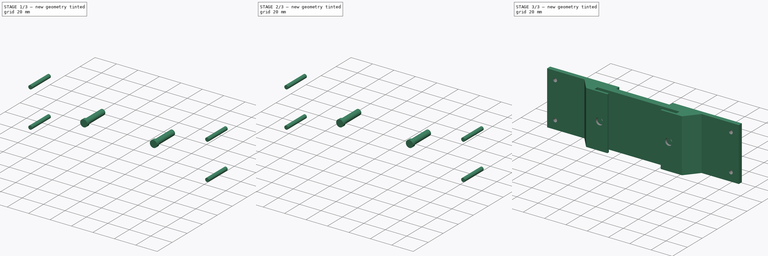
[diagram: build sequence overview — one tinted view per stage of 3, left to right]
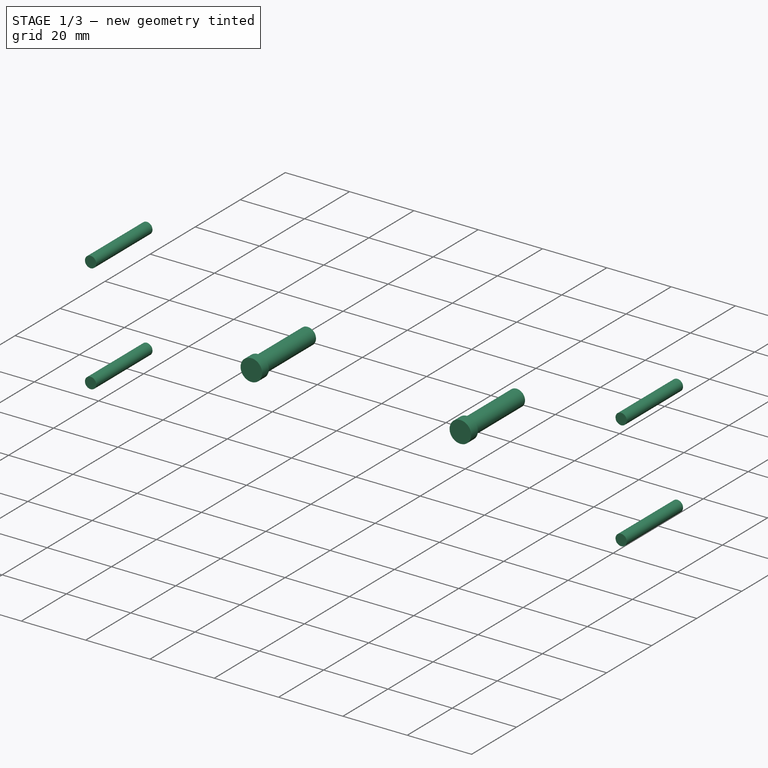
[diagram: stage 1 of 3 — iso view after this stage's code; geometry added in this stage tinted green]
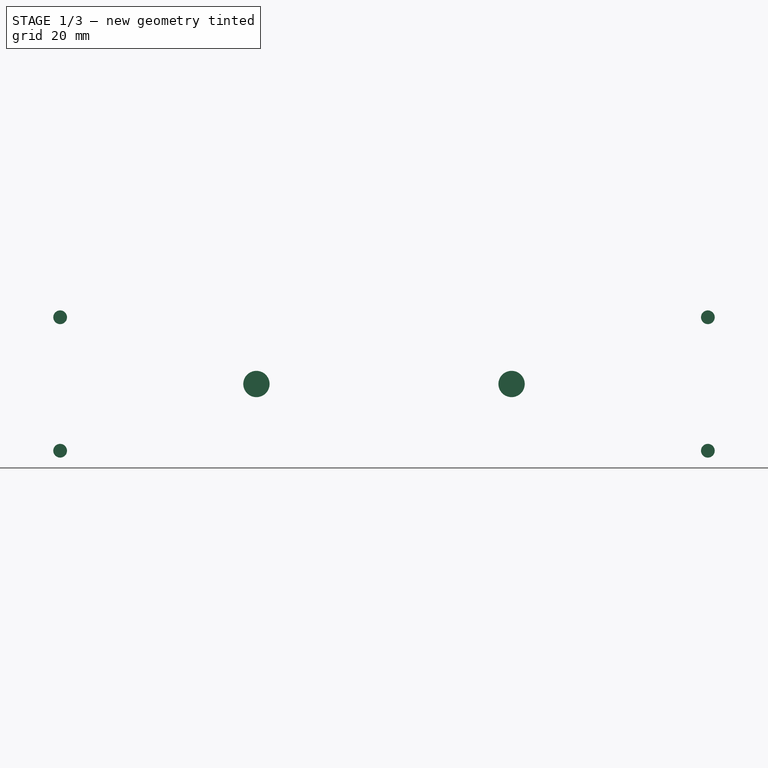
[diagram: stage 1 of 3 — front view after this stage's code; geometry added in this stage tinted green]
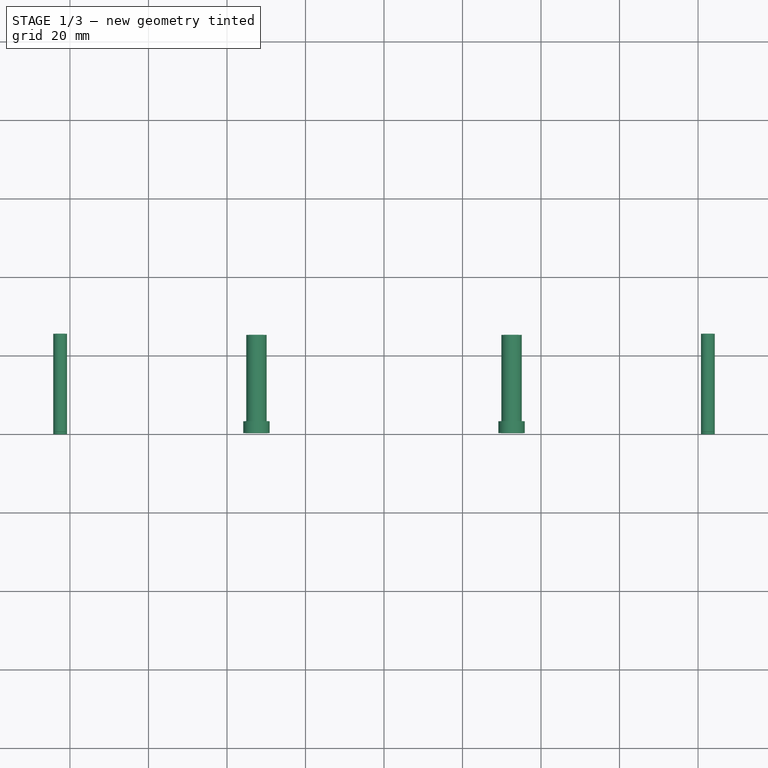
[diagram: stage 1 of 3 — top view after this stage's code; geometry added in this stage tinted green]
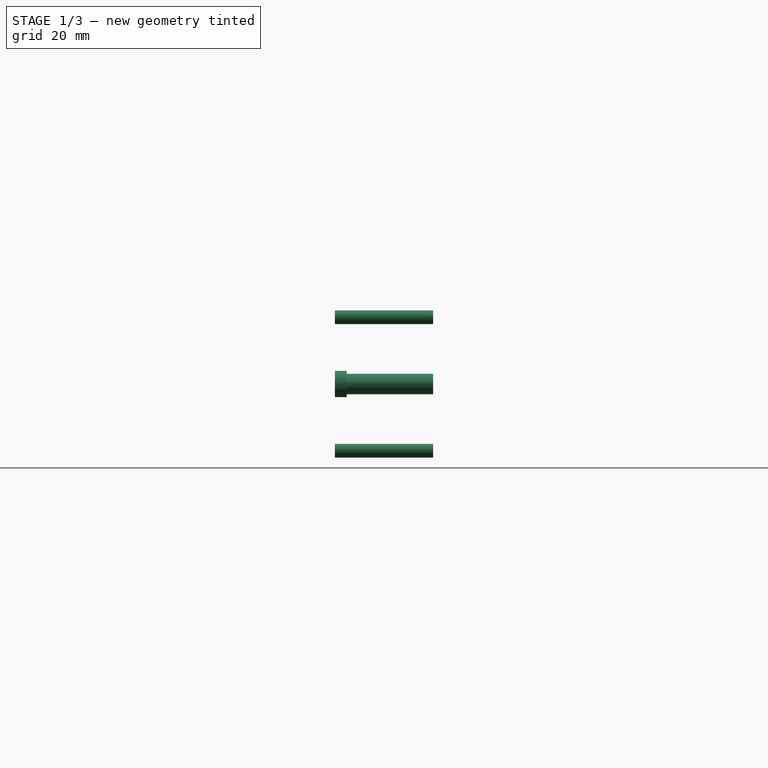
[diagram: stage 1 of 3 — right view after this stage's code; geometry added in this stage tinted green]
FCSTD DOCUMENT  (FreeCAD 0.16R6698 (Git))
Label: stand-mount
License: All rights reserved
LicenseURL: http://en.wikipedia.org/wiki/All_rights_reserved
objects: Sketcher::SketchObject×3, Part::Extrusion×3, Part::MultiFuse×1, Part::Cut×1
note: 8 computed .brp shape members not serialized (recipe doc carries the construction recipe); baked Part::Feature solids carry a one-line shape summary decoded from their .brp

FEATURE [Sketcher::SketchObject] Sketch001
  Placement = pos=(0,0,25) rot=(1,0,0;1.5708rad)
  sketch-geometry (10):
    g0: Circle CenterX=-82.5 CenterY=-17 CenterZ=0 NormalX=0 NormalY=0 NormalZ=1 Radius=1.75
    g1: Circle CenterX=82.5 CenterY=17 CenterZ=0 NormalX=0 NormalY=0 NormalZ=1 Radius=1.75
    g2: Circle CenterX=82.5 CenterY=-17 CenterZ=0 NormalX=0 NormalY=0 NormalZ=1 Radius=1.75
    g3: Circle CenterX=-32.5 CenterY=0 CenterZ=0 NormalX=0 NormalY=0 NormalZ=1 Radius=2.6
    g4: Circle CenterX=32.5 CenterY=0 CenterZ=0 NormalX=0 NormalY=0 NormalZ=1 Radius=2.6
    g5: Circle CenterX=-82.5 CenterY=17 CenterZ=0 NormalX=0 NormalY=0 NormalZ=1 Radius=1.75
    g6: LineSegment [constr] StartX=-82.5 StartY=17 StartZ=0 EndX=82.5 EndY=17 EndZ=0
    g7: LineSegment [constr] StartX=82.5 StartY=17 StartZ=0 EndX=82.5 EndY=-17 EndZ=0
    g8: LineSegment [constr] StartX=82.5 StartY=-17 StartZ=0 EndX=-82.5 EndY=-17 EndZ=0
    g9: LineSegment [constr] StartX=-82.5 StartY=-17 StartZ=0 EndX=-82.5 EndY=17 EndZ=0
  constraints (26):
    c: DistanceX(g0,g2) = 165
    c: PointOnObject(g3,g-1)
    c: PointOnObject(g4,g-1)
    c: Symmetric(g3,g4,g-2)
    c: DistanceX(g3,g4) = 65
    c: Radius(g3) = 2.6
    c: Equal(g3,g4)
    c: Radius(g0) = 1.75
    c: Equal(g0,g2)
    c: Equal(g0,g1)
    c: Equal(g5,g0)
    c: Coincident(g6,g7)
    c: Coincident(g7,g8)
    c: Coincident(g8,g9)
    c: Coincident(g9,g6)
    c: Horizontal(g6)
    c: Horizontal(g8)
    c: Vertical(g7)
    c: Vertical(g9)
    c: Coincident(g6,g5)
    c: Coincident(g8,g0)
    c: Coincident(g1,g6)
    c: Coincident(g2,g7)
    c: Symmetric(g1,g2,g-1)
    c: Symmetric(g5,g1,g-2)
    c: DistanceY(g7,g7) = 34
FEATURE [Sketcher::SketchObject] Sketch002
  Placement = pos=(0,0,25) rot=(1,0,0;1.5708rad)
  sketch-geometry (2):
    g0: Circle CenterX=-32.5 CenterY=0 CenterZ=0 NormalX=0 NormalY=0 NormalZ=1 Radius=3.35
    g1: Circle CenterX=32.5 CenterY=0 CenterZ=0 NormalX=0 NormalY=0 NormalZ=1 Radius=3.35
  constraints (6):
    c: PointOnObject(g0,g-1)
    c: PointOnObject(g1,g-1)
    c: Symmetric(g0,g1,g-2)
    c: DistanceX(g0,g1) = 65
    c: Radius(g0) = 3.35
    c: Equal(g0,g1)
FEATURE [Part::Extrusion] Extrude002
  Base = -> Sketch002
  Dir = (0,3,0)
  Solid = true
FEATURE [Part::Extrusion] Extrude003
  Base = -> Sketch001
  Dir = (0,25,0)
  Solid = true
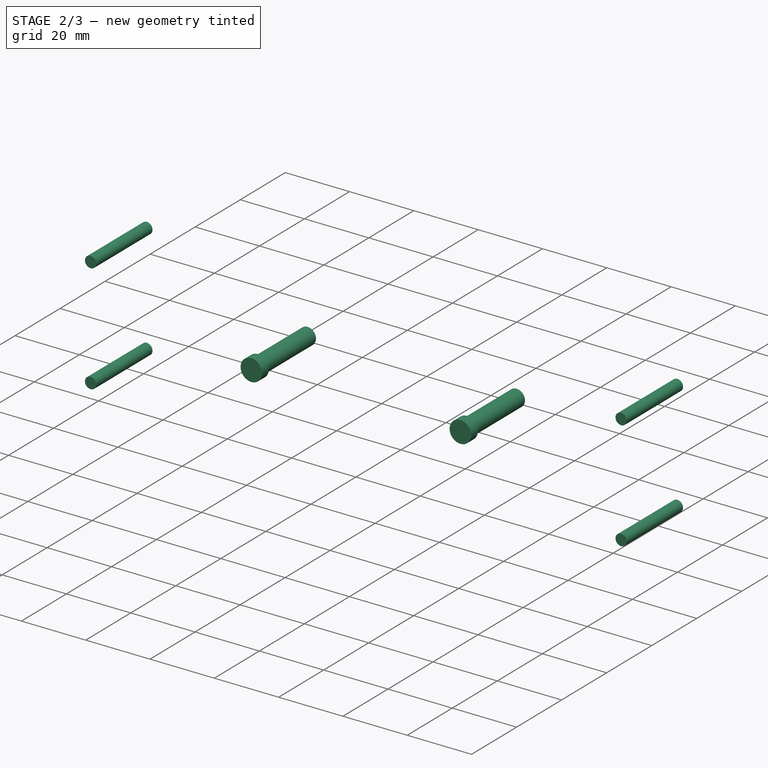
[diagram: stage 2 of 3 — iso view after this stage's code; geometry added in this stage tinted green]
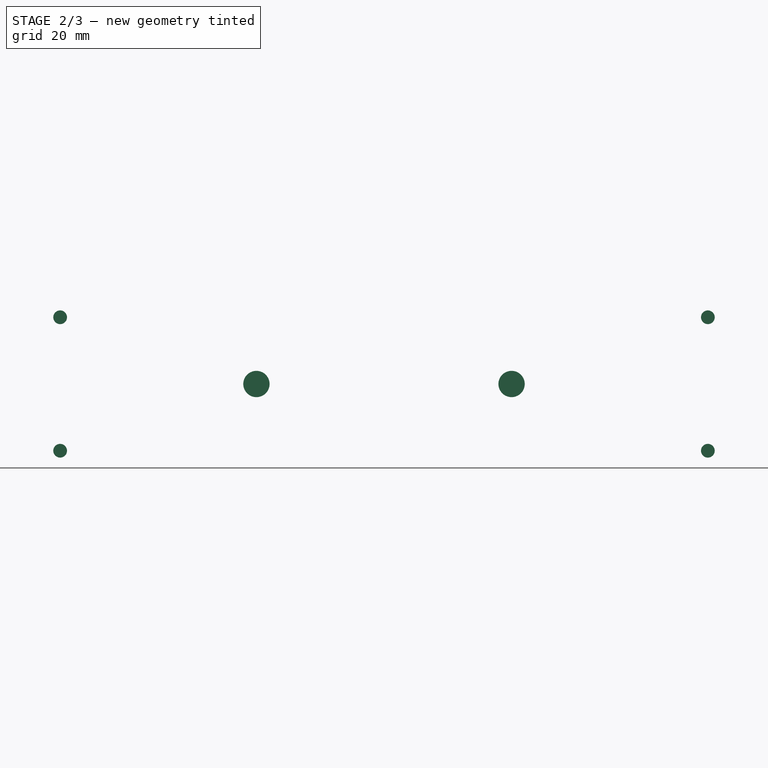
[diagram: stage 2 of 3 — front view after this stage's code; geometry added in this stage tinted green]
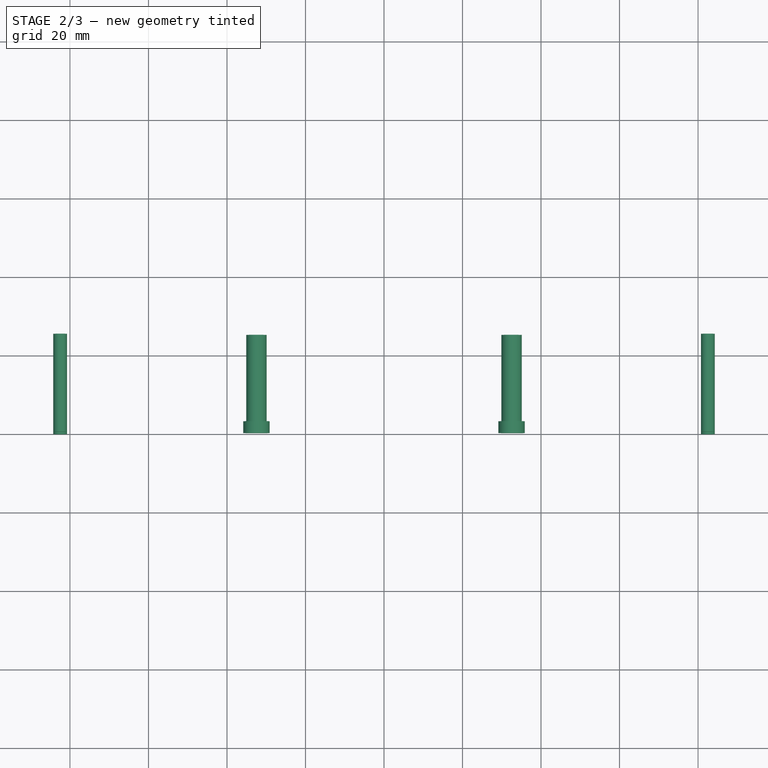
[diagram: stage 2 of 3 — top view after this stage's code; geometry added in this stage tinted green]
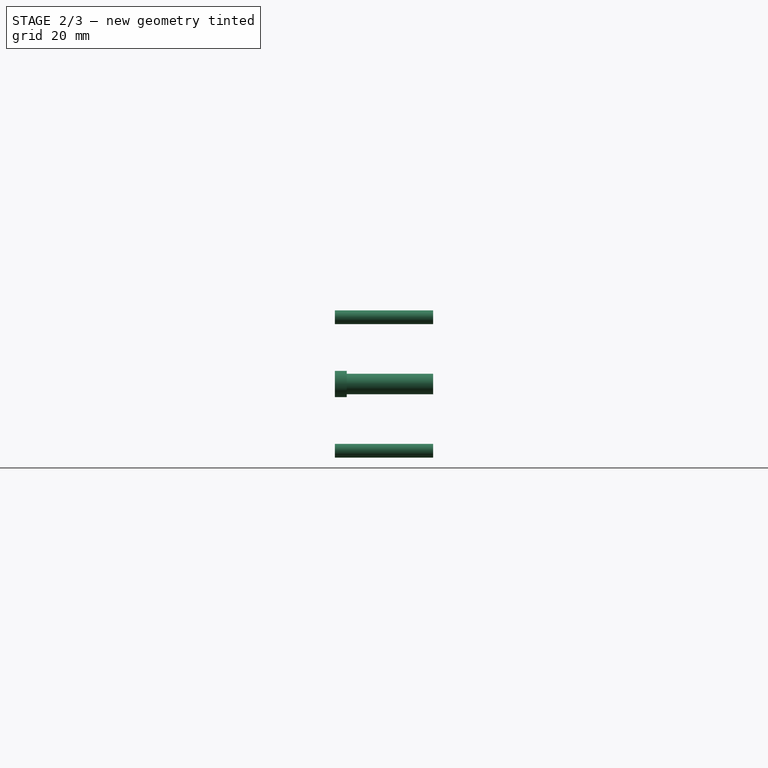
[diagram: stage 2 of 3 — right view after this stage's code; geometry added in this stage tinted green]
FEATURE [Part::MultiFuse] Fusion
  Shapes = -> [Extrude002,Extrude003]
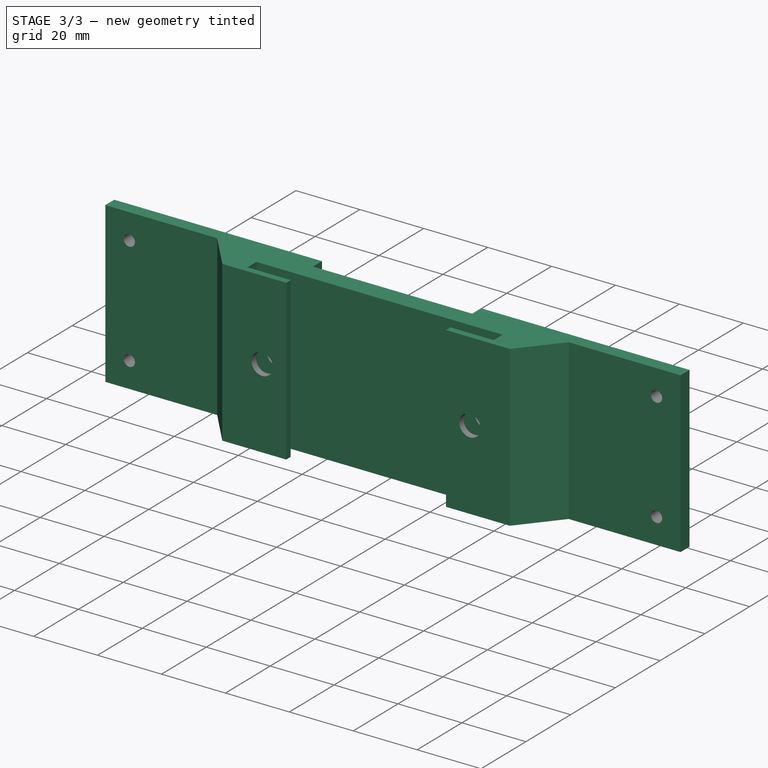
[diagram: stage 3 of 3 — iso view after this stage's code; geometry added in this stage tinted green]
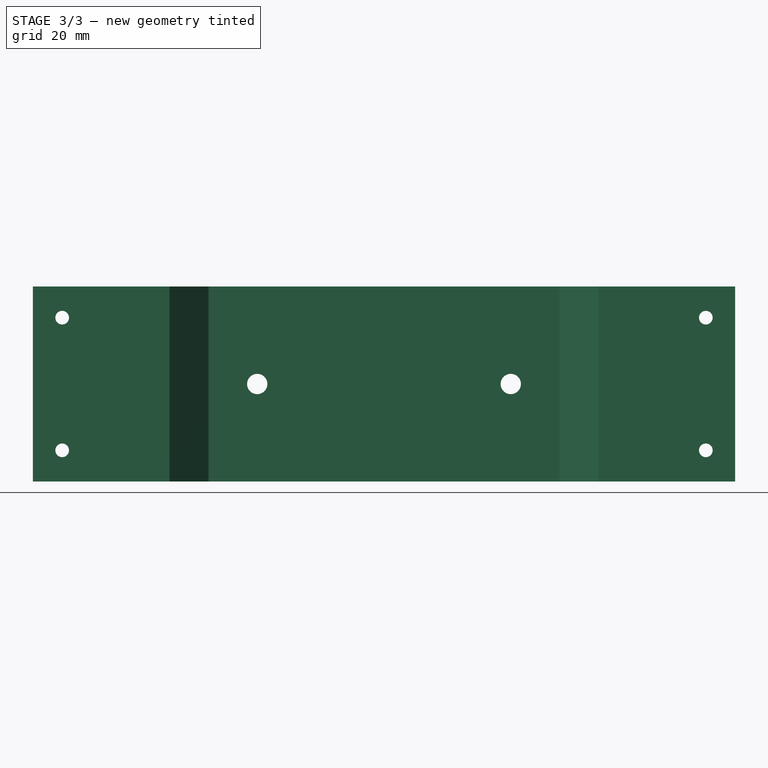
[diagram: stage 3 of 3 — front view after this stage's code; geometry added in this stage tinted green]
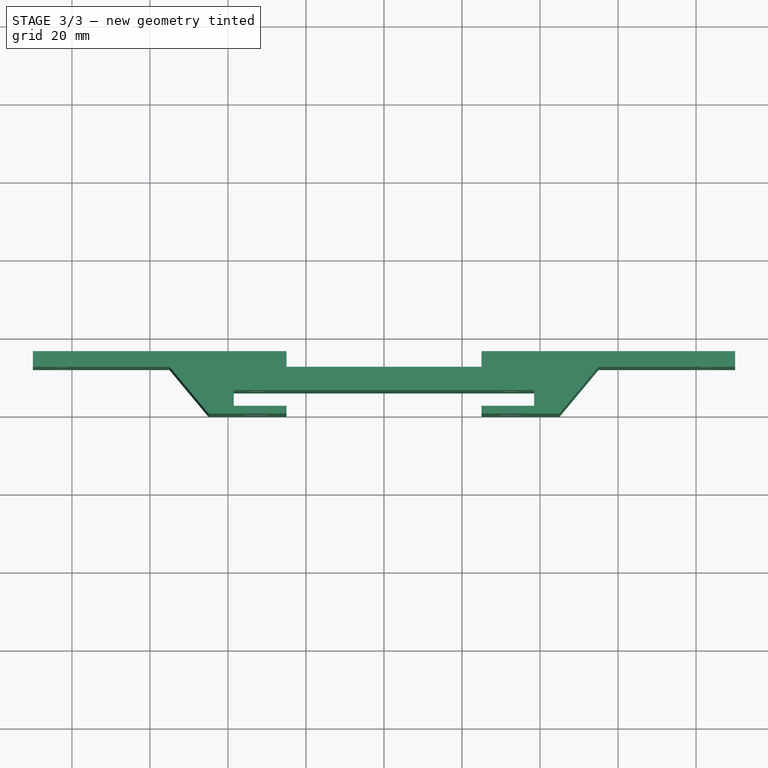
[diagram: stage 3 of 3 — top view after this stage's code; geometry added in this stage tinted green]
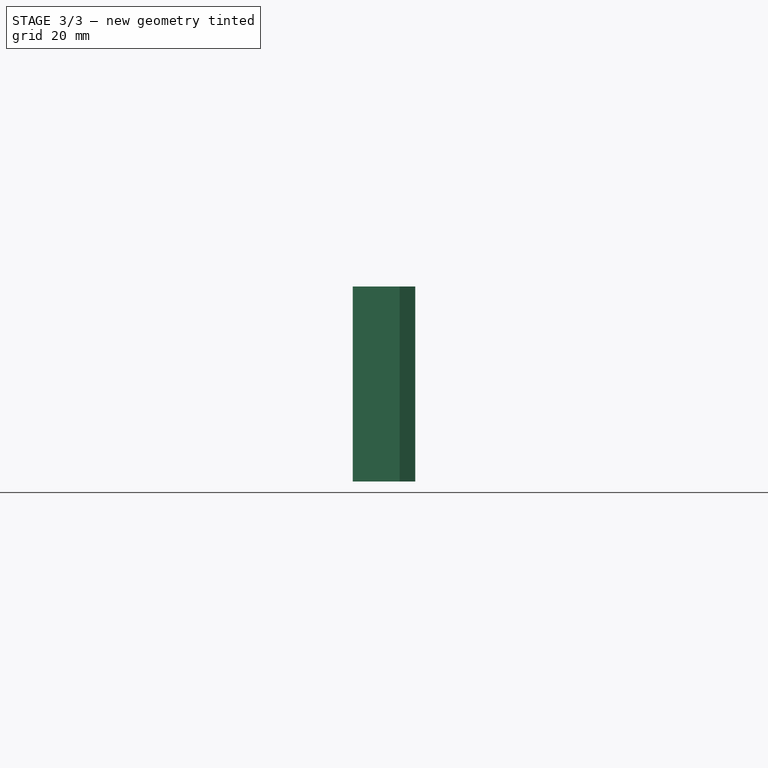
[diagram: stage 3 of 3 — right view after this stage's code; geometry added in this stage tinted green]
FEATURE [Sketcher::SketchObject] Sketch
  sketch-geometry (20):
    g0: LineSegment StartX=90 StartY=16 StartZ=0 EndX=90 EndY=12 EndZ=0
    g1: LineSegment StartX=-90 StartY=12 StartZ=0 EndX=-90 EndY=16 EndZ=0
    g2: LineSegment StartX=-90 StartY=12 StartZ=0 EndX=-55 EndY=12 EndZ=0
    g3: LineSegment StartX=55 StartY=12 StartZ=0 EndX=90 EndY=12 EndZ=0
    g4: LineSegment StartX=-38.5 StartY=6 StartZ=0 EndX=38.5 EndY=6 EndZ=0
    g5: LineSegment StartX=38.5 StartY=6 StartZ=0 EndX=38.5 EndY=2 EndZ=0
    g6: LineSegment StartX=-38.5 StartY=2 StartZ=0 EndX=-38.5 EndY=6 EndZ=0
    g7: LineSegment StartX=-38.5 StartY=2 StartZ=0 EndX=-25 EndY=2 EndZ=0
    g8: LineSegment StartX=-25 StartY=0 StartZ=0 EndX=-45 EndY=0 EndZ=0
    g9: LineSegment StartX=38.5 StartY=2 StartZ=0 EndX=25 EndY=2 EndZ=0
    g10: LineSegment StartX=-55 StartY=12 StartZ=0 EndX=-45 EndY=0 EndZ=0
    g11: LineSegment StartX=55 StartY=12 StartZ=0 EndX=45 EndY=0 EndZ=0
    g12: LineSegment StartX=-25 StartY=0 StartZ=0 EndX=-25 EndY=2 EndZ=0
    g13: LineSegment StartX=25 StartY=0 StartZ=0 EndX=25 EndY=2 EndZ=0
    g14: LineSegment StartX=25 StartY=0 StartZ=0 EndX=45 EndY=0 EndZ=0
    g15: LineSegment StartX=-90 StartY=16 StartZ=0 EndX=-25 EndY=16 EndZ=0
    g16: LineSegment StartX=-25 StartY=16 StartZ=0 EndX=-25 EndY=12 EndZ=0
    g17: LineSegment StartX=-25 StartY=12 StartZ=0 EndX=25 EndY=12 EndZ=0
    g18: LineSegment StartX=25 StartY=12 StartZ=0 EndX=25 EndY=16 EndZ=0
    g19: LineSegment StartX=25 StartY=16 StartZ=0 EndX=90 EndY=16 EndZ=0
  constraints (60):
    c: Vertical(g0)
    c: Vertical(g1)
    c: Horizontal(g2)
    c: Horizontal(g3)
    c: Coincident(g4,g5)
    c: Coincident(g6,g4)
    c: Horizontal(g4)
    c: Vertical(g5)
    c: Vertical(g6)
    c: Horizontal(g7)
    c: Horizontal(g8)
    c: Coincident(g7,g6)
    c: Horizontal(g9)
    c: Coincident(g9,g5)
    c: Coincident(g10,g2)
    c: Coincident(g10,g8)
    c: Coincident(g11,g3)
    c: Equal(g6,g5)
    c: Equal(g2,g3)
    c: Equal(g1,g0)
    c: Equal(g7,g9)
    c: Equal(g10,g11)
    c: Distance(g2,g8) = 12
    c: Distance(g1,g0) = 180
    c: Distance(g1,g8) = 16
    c: Distance(g4,g9) = 4
    c: DistanceX(g6,g5) = 77
    c: DistanceX(g2,g3) = 110
    c: Equal(g7,g9)
    c: DistanceY(g-1,g8) = 0
    c: Coincident(g12,g8)
    c: Vertical(g12)
    c: Vertical(g13)
    c: Coincident(g13,g9)
    c: Coincident(g12,g7)
    c: Coincident(g3,g0)
    c: Coincident(g2,g1)
    c: Symmetric(g8,g13,g-2)
    c: DistanceY(g12,g12) = 2
    c: Coincident(g14,g13)
    c: Coincident(g14,g11)
    c: Horizontal(g14)
    c: Equal(g8,g14)
    c: DistanceX(g8,g11) = 90
    c: DistanceX(g8,g13) = 50
    c: Coincident(g1,g15)
    c: Horizontal(g15)
    c: Coincident(g15,g16)
    c: Vertical(g16)
    c: Coincident(g16,g17)
    c: Horizontal(g17)
    c: Coincident(g17,g18)
    c: Vertical(g18)
    c: Coincident(g18,g19)
    c: Horizontal(g19)
    c: Coincident(g19,g0)
    c: Symmetric(g16,g17,g-2)
    c: DistanceX(g17,g17) = 50
    c: Equal(g16,g18)
    c: DistanceY(g16,g16) = 4
FEATURE [Part::Extrusion] Extrude
  Base = -> Sketch
  Dir = (0,0,50)
  Solid = true
FEATURE [Part::Cut] Cut
  Base = -> Extrude
  Tool = -> Fusion
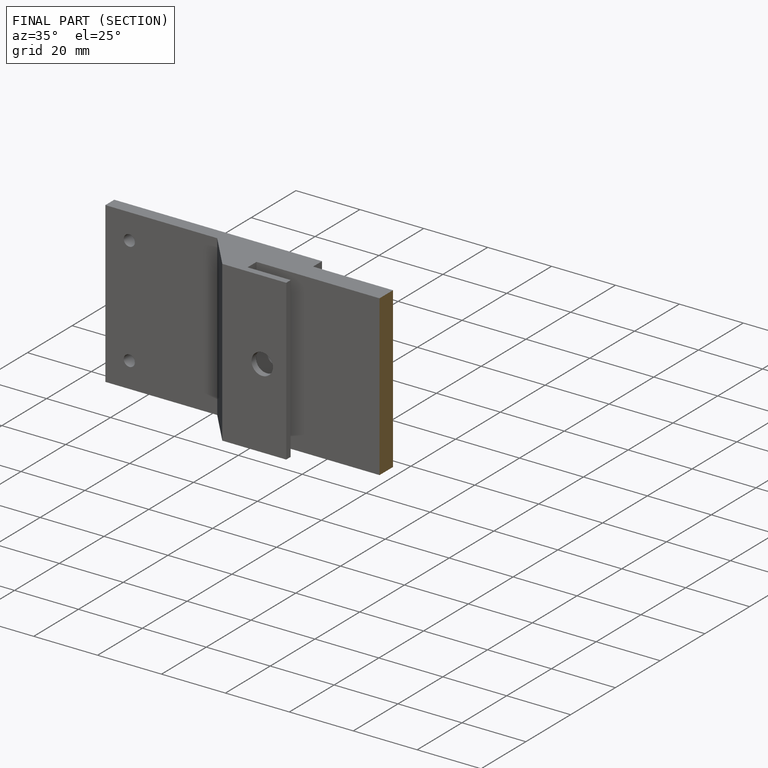
[diagram: finished part — half-section view (interior)]
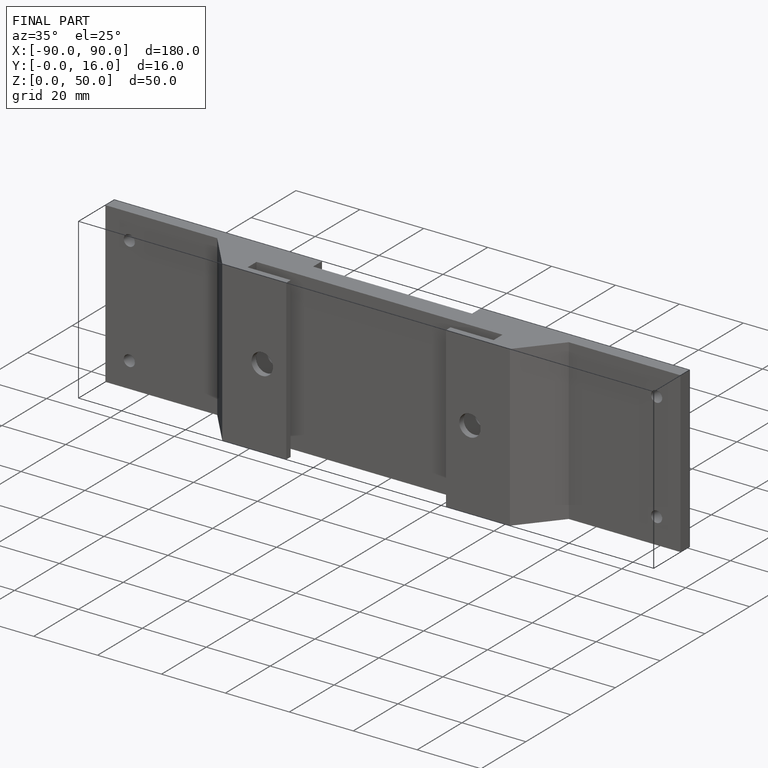
[diagram: finished part — iso view with bounding-box wireframe]
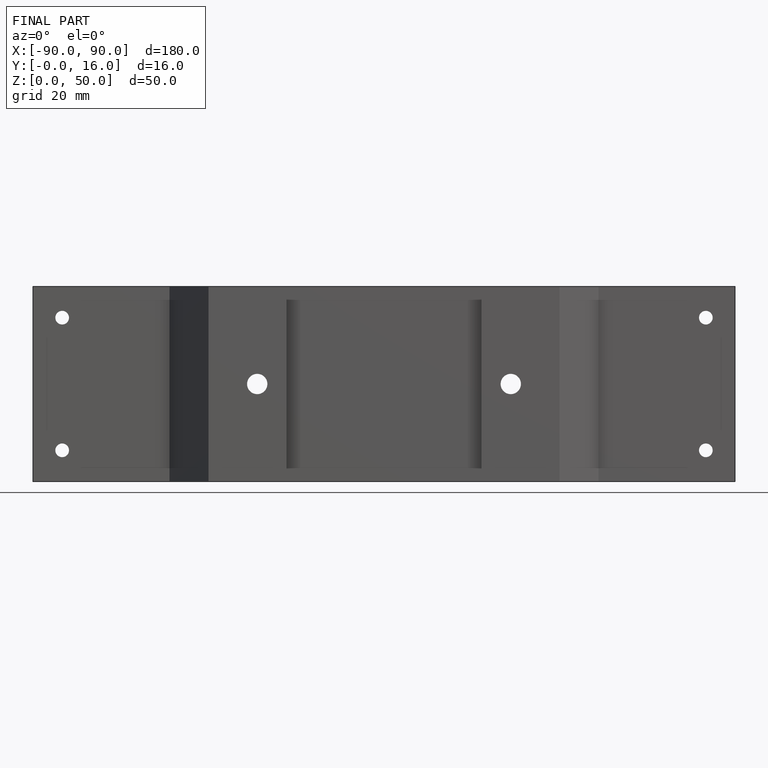
[diagram: finished part — front view with bounding-box wireframe]
